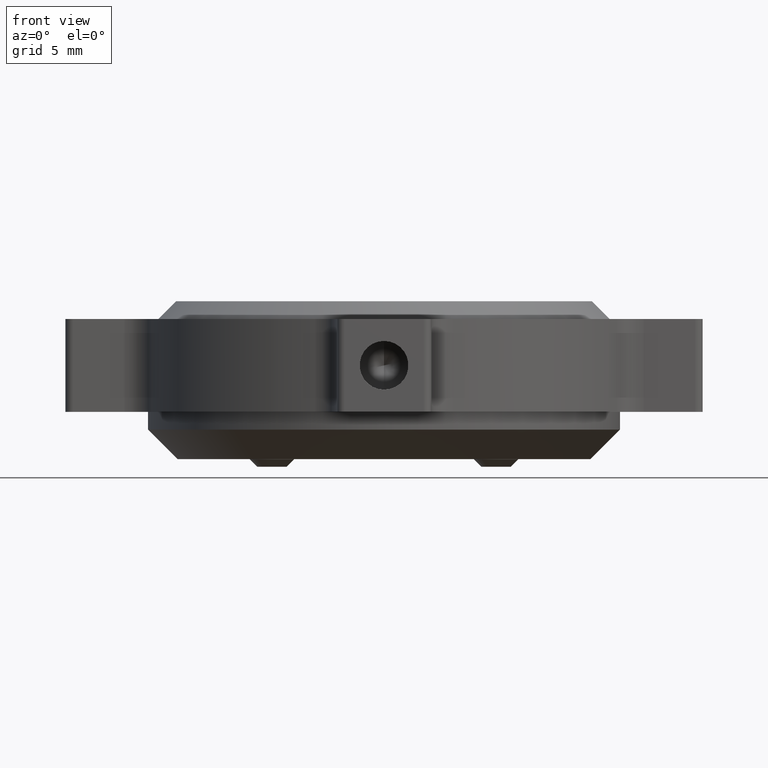
[diagram: clean part render]
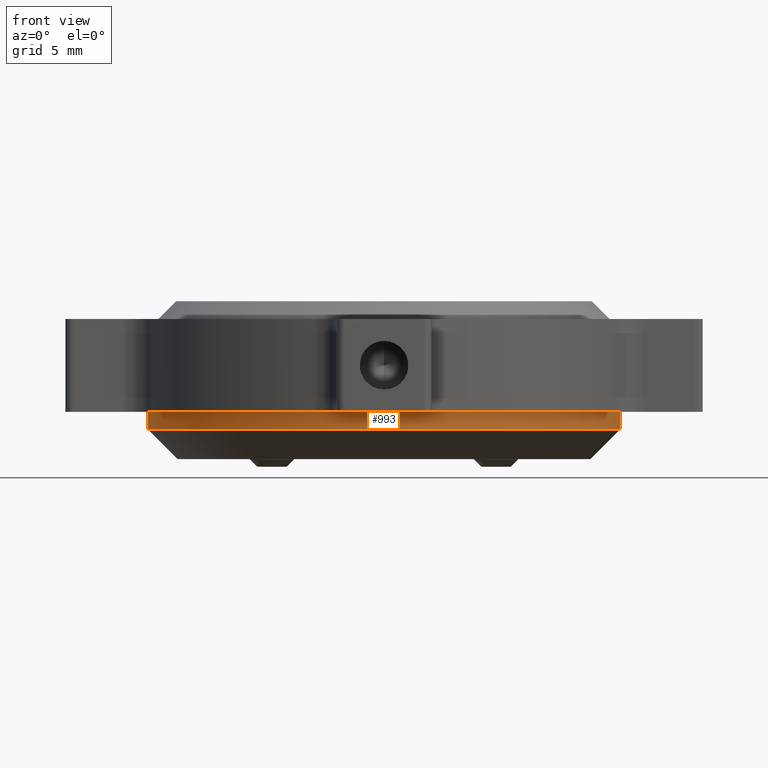
[diagram: same view with one face highlighted and labeled with its STEP entity id]
A machine part, front view. The second image highlights one B-rep face of the part: STEP entity #993.
In plain terms, the highlighted cylindrical surface (partial cylindrical patch) has radius 16 mm, axis along (-0, -0, -1).
Its self-contained STEP definition (entity closure, byte-faithful):
#34 = CARTESIAN_POINT ( 'NONE',  ( -1.916479710973556516, 8.988821372047169689, 27.05000000000000426 ) ) ;
#74 = CARTESIAN_POINT ( 'NONE',  ( 14.08352028902644371, 8.988821372047171465, 25.85000000000000853 ) ) ;
#118 = AXIS2_PLACEMENT_3D ( 'NONE', #34, #243, #1676 ) ;
#178 = CARTESIAN_POINT ( 'NONE',  ( -17.91647971097355807, 8.988821372047173242, 27.05000000000000426 ) ) ;
#185 = CARTESIAN_POINT ( 'NONE',  ( 14.08352028902644371, 8.988821372047171465, 27.05000000000000426 ) ) ;
#200 = DIRECTION ( 'NONE',  ( 1.000000000000000000, 0.000000000000000000, 0.000000000000000000 ) ) ;
#243 = DIRECTION ( 'NONE',  ( -0.000000000000000000, -0.000000000000000000, 1.000000000000000000 ) ) ;
#335 = VERTEX_POINT ( 'NONE', #178 ) ;
#359 = EDGE_LOOP ( 'NONE', ( #1367, #1702, #1986, #2256 ) ) ;
#582 = DIRECTION ( 'NONE',  ( -0.000000000000000000, -0.000000000000000000, -1.000000000000000000 ) ) ;
#672 = CARTESIAN_POINT ( 'NONE',  ( -17.91647971097355807, 8.988821372047173242, 27.05000000000000426 ) ) ;
#697 = VECTOR ( 'NONE', #582, 1000.000000000000000 ) ;
#815 = LINE ( 'NONE', #1763, #697 ) ;
#953 = EDGE_CURVE ( 'NONE', #2508, #2639, #815, .T. ) ;
#993 = ADVANCED_FACE ( 'NONE', ( #1587 ), #2547, .T. ) ;
#1013 = CIRCLE ( 'NONE', #2769, 16.00000000000000000 ) ;
#1049 = AXIS2_PLACEMENT_3D ( 'NONE', #2590, #1105, #1121 ) ;
#1105 = DIRECTION ( 'NONE',  ( -0.000000000000000000, -0.000000000000000000, -1.000000000000000000 ) ) ;
#1121 = DIRECTION ( 'NONE',  ( -1.000000000000000000, 0.000000000000000000, 0.000000000000000000 ) ) ;
#1159 = VECTOR ( 'NONE', #1847, 1000.000000000000000 ) ;
#1301 = VERTEX_POINT ( 'NONE', #1861 ) ;
#1367 = ORIENTED_EDGE ( 'NONE', *, *, #2687, .T. ) ;
#1587 = FACE_OUTER_BOUND ( 'NONE', #359, .T. ) ;
#1676 = DIRECTION ( 'NONE',  ( -1.000000000000000000, 0.000000000000000000, 0.000000000000000000 ) ) ;
#1702 = ORIENTED_EDGE ( 'NONE', *, *, #2716, .T. ) ;
#1763 = CARTESIAN_POINT ( 'NONE',  ( 14.08352028902644371, 8.988821372047171465, 27.05000000000000426 ) ) ;
#1847 = DIRECTION ( 'NONE',  ( -0.000000000000000000, -0.000000000000000000, -1.000000000000000000 ) ) ;
#1861 = CARTESIAN_POINT ( 'NONE',  ( -17.91647971097355807, 8.988821372047173242, 25.85000000000000853 ) ) ;
#1905 = CIRCLE ( 'NONE', #118, 16.00000000000000000 ) ;
#1986 = ORIENTED_EDGE ( 'NONE', *, *, #953, .F. ) ;
#2256 = ORIENTED_EDGE ( 'NONE', *, *, #2888, .F. ) ;
#2299 = LINE ( 'NONE', #672, #1159 ) ;
#2339 = DIRECTION ( 'NONE',  ( -0.000000000000000000, -0.000000000000000000, 1.000000000000000000 ) ) ;
#2508 = VERTEX_POINT ( 'NONE', #185 ) ;
#2547 = CYLINDRICAL_SURFACE ( 'NONE', #1049, 16.00000000000000000 ) ;
#2590 = CARTESIAN_POINT ( 'NONE',  ( -1.916479710973556516, 8.988821372047169689, 27.05000000000000426 ) ) ;
#2639 = VERTEX_POINT ( 'NONE', #74 ) ;
#2687 = EDGE_CURVE ( 'NONE', #335, #1301, #2299, .T. ) ;
#2716 = EDGE_CURVE ( 'NONE', #1301, #2639, #1013, .T. ) ;
#2769 = AXIS2_PLACEMENT_3D ( 'NONE', #2802, #2339, #200 ) ;
#2802 = CARTESIAN_POINT ( 'NONE',  ( -1.916479710973556516, 8.988821372047169689, 25.85000000000000853 ) ) ;
#2888 = EDGE_CURVE ( 'NONE', #335, #2508, #1905, .T. ) ;